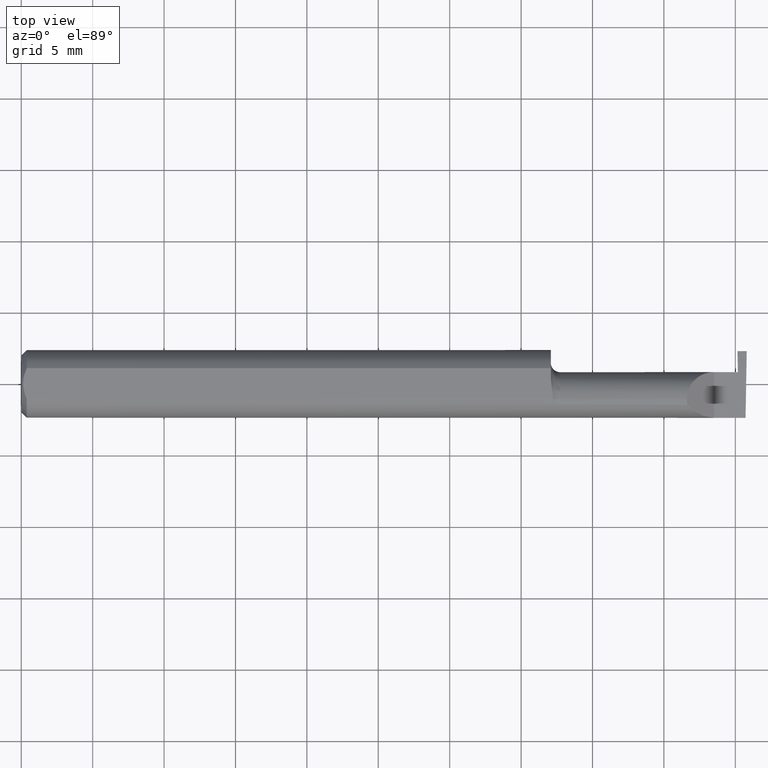
[diagram: clean part render]
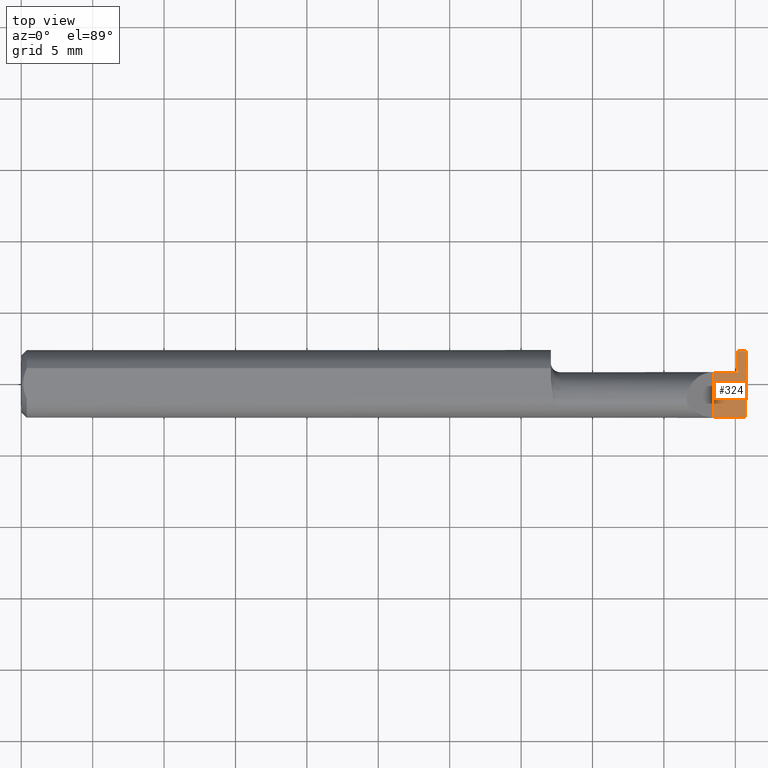
[diagram: same view with one face highlighted and labeled with its STEP entity id]
A machine part, top view. The second image highlights one B-rep face of the part: STEP entity #324.
In plain terms, the highlighted planar face has unit normal (-0, 0, -1).
Its self-contained STEP definition (entity closure, byte-faithful):
#22 = LINE ( 'NONE', #763, #33 ) ;
#33 = VECTOR ( 'NONE', #571, 39.37007874015748143 ) ;
#41 = DIRECTION ( 'NONE',  ( -1.000000000000000000, -0.000000000000000000, -0.000000000000000000 ) ) ;
#43 = VECTOR ( 'NONE', #633, 39.37007874015748143 ) ;
#64 = VERTEX_POINT ( 'NONE', #205 ) ;
#67 = CARTESIAN_POINT ( 'NONE',  ( 1.975510542377208578, 0.03240000000000000518, 1.857359675493197298E-17 ) ) ;
#73 = ORIENTED_EDGE ( 'NONE', *, *, #196, .T. ) ;
#77 = VERTEX_POINT ( 'NONE', #742 ) ;
#83 = VERTEX_POINT ( 'NONE', #67 ) ;
#90 = DIRECTION ( 'NONE',  ( 0.01742050049977392906, -0.9998482515673753346, -2.130797594924498551E-18 ) ) ;
#101 = CARTESIAN_POINT ( 'NONE',  ( 1.974499999999999922, 0.09040000000000000813, -3.918869757271545852E-19 ) ) ;
#102 = LINE ( 'NONE', #347, #323 ) ;
#111 = CARTESIAN_POINT ( 'NONE',  ( 1.996789369178486373, -0.09359999999634724399, 1.965990811775635199E-19 ) ) ;
#147 = DIRECTION ( 'NONE',  ( -0.000000000000000000, 1.000000000000000000, -0.000000000000000000 ) ) ;
#153 = CARTESIAN_POINT ( 'NONE',  ( 2.999519565323743132E-32, -0.09359999999999998876, 2.449293598294717754E-16 ) ) ;
#154 = EDGE_LOOP ( 'NONE', ( #558, #73, #630, #327, #709, #517, #664 ) ) ;
#189 = PLANE ( 'NONE',  #563 ) ;
#196 = EDGE_CURVE ( 'NONE', #613, #64, #759, .T. ) ;
#204 = EDGE_CURVE ( 'NONE', #741, #83, #564, .T. ) ;
#205 = CARTESIAN_POINT ( 'NONE',  ( 2.000000000000000444, 0.09040000000000000813, 6.269377719834979509E-17 ) ) ;
#210 = EDGE_CURVE ( 'NONE', #586, #465, #22, .T. ) ;
#231 = DIRECTION ( 'NONE',  ( -1.000000000000000000, -7.209802597311143795E-16, 1.224646799147358877E-16 ) ) ;
#261 = VECTOR ( 'NONE', #231, 39.37007874015748143 ) ;
#281 = LINE ( 'NONE', #153, #550 ) ;
#284 = LINE ( 'NONE', #466, #261 ) ;
#323 = VECTOR ( 'NONE', #147, 39.37007874015748143 ) ;
#324 = ADVANCED_FACE ( 'NONE', ( #559 ), #189, .F. ) ;
#325 = DIRECTION ( 'NONE',  ( 0.01744642479411314534, 0.9998477995484629233, -2.135106780035503491E-18 ) ) ;
#327 = ORIENTED_EDGE ( 'NONE', *, *, #204, .T. ) ;
#347 = CARTESIAN_POINT ( 'NONE',  ( 1.910000000000000142, -0.1000000000000000056, 1.102182119232621301E-17 ) ) ;
#376 = CARTESIAN_POINT ( 'NONE',  ( 2.000000000000000000, -0.1000000000000000056, 0.000000000000000000 ) ) ;
#385 = CARTESIAN_POINT ( 'NONE',  ( 1.910000000000000142, 0.03239999999999999131, 1.102182119232621301E-17 ) ) ;
#431 = EDGE_CURVE ( 'NONE', #741, #64, #764, .T. ) ;
#440 = DIRECTION ( 'NONE',  ( -1.000000000000000000, 0.000000000000000000, 1.224646799147358877E-16 ) ) ;
#448 = CARTESIAN_POINT ( 'NONE',  ( 1.899999999999999911, 0.09040000000000000813, -3.918869757271545852E-19 ) ) ;
#465 = VERTEX_POINT ( 'NONE', #568 ) ;
#466 = CARTESIAN_POINT ( 'NONE',  ( 2.000000000000000000, 0.03240000000000002600, 1.169020725542458377E-32 ) ) ;
#489 = VECTOR ( 'NONE', #90, 39.37007874015748143 ) ;
#517 = ORIENTED_EDGE ( 'NONE', *, *, #210, .F. ) ;
#518 = CARTESIAN_POINT ( 'NONE',  ( 1.996678706298551376, -0.09994204647866641866, 4.067411700507134861E-19 ) ) ;
#529 = EDGE_CURVE ( 'NONE', #613, #77, #281, .T. ) ;
#550 = VECTOR ( 'NONE', #41, 39.37007874015748143 ) ;
#558 = ORIENTED_EDGE ( 'NONE', *, *, #529, .F. ) ;
#559 = FACE_OUTER_BOUND ( 'NONE', #154, .T. ) ;
#560 = EDGE_CURVE ( 'NONE', #77, #586, #102, .T. ) ;
#563 = AXIS2_PLACEMENT_3D ( 'NONE', #376, #681, #440 ) ;
#564 = LINE ( 'NONE', #635, #489 ) ;
#568 = CARTESIAN_POINT ( 'NONE',  ( 1.974499999999999922, 0.03240000000000000518, 6.613080830317130235E-17 ) ) ;
#571 = DIRECTION ( 'NONE',  ( 1.000000000000000000, 0.000000000000000000, 0.000000000000000000 ) ) ;
#586 = VERTEX_POINT ( 'NONE', #385 ) ;
#589 = VECTOR ( 'NONE', #325, 39.37007874015748143 ) ;
#613 = VERTEX_POINT ( 'NONE', #111 ) ;
#630 = ORIENTED_EDGE ( 'NONE', *, *, #431, .F. ) ;
#633 = DIRECTION ( 'NONE',  ( 1.000000000000000000, -0.000000000000000000, -0.000000000000000000 ) ) ;
#635 = CARTESIAN_POINT ( 'NONE',  ( 1.977824098549211040, -0.1003863739339453109, 2.715764672991602673E-18 ) ) ;
#664 = ORIENTED_EDGE ( 'NONE', *, *, #560, .F. ) ;
#681 = DIRECTION ( 'NONE',  ( -1.224646799147358877E-16, 0.000000000000000000, -1.000000000000000000 ) ) ;
#702 = EDGE_CURVE ( 'NONE', #83, #465, #284, .T. ) ;
#709 = ORIENTED_EDGE ( 'NONE', *, *, #702, .T. ) ;
#741 = VERTEX_POINT ( 'NONE', #101 ) ;
#742 = CARTESIAN_POINT ( 'NONE',  ( 1.910000000000000142, -0.09359999999999998876, 1.102182119232621301E-17 ) ) ;
#759 = LINE ( 'NONE', #518, #589 ) ;
#763 = CARTESIAN_POINT ( 'NONE',  ( 1.459999999999999964, 0.03239999999999999825, 6.613092715395738282E-17 ) ) ;
#764 = LINE ( 'NONE', #448, #43 ) ;